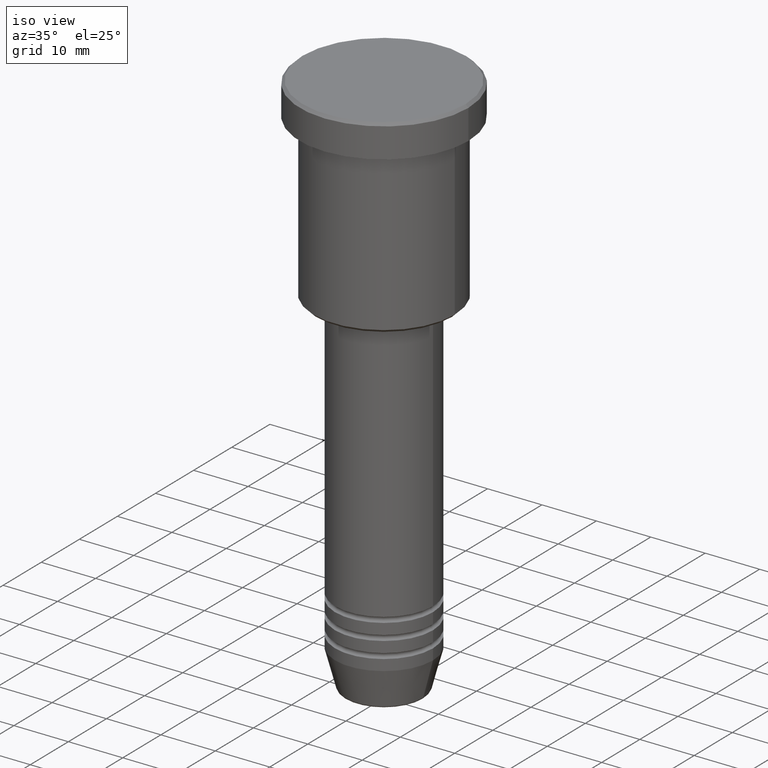
[diagram: clean part render]
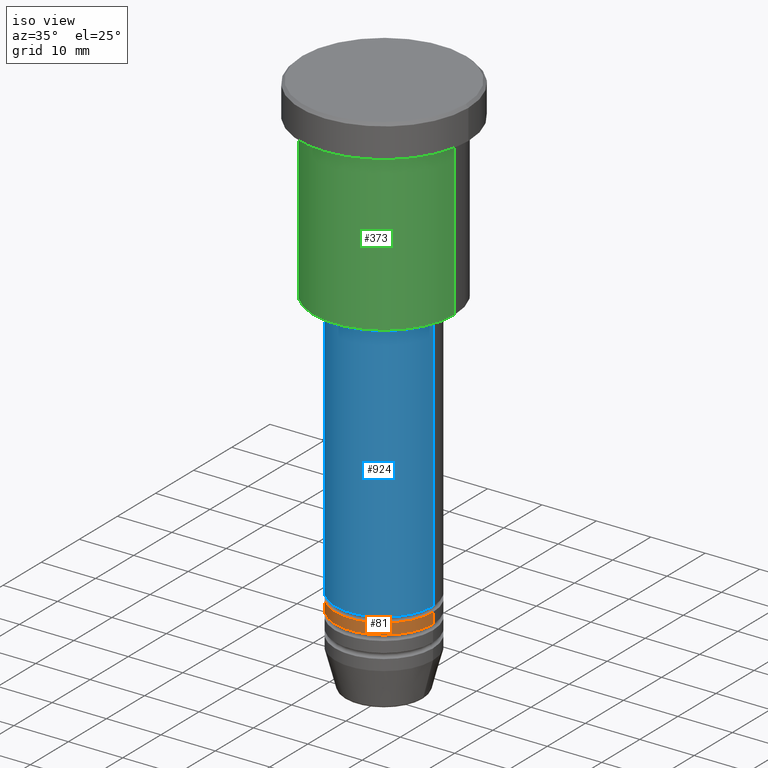
[diagram: same view with three faces highlighted in distinct colors, each labeled with its STEP entity id]
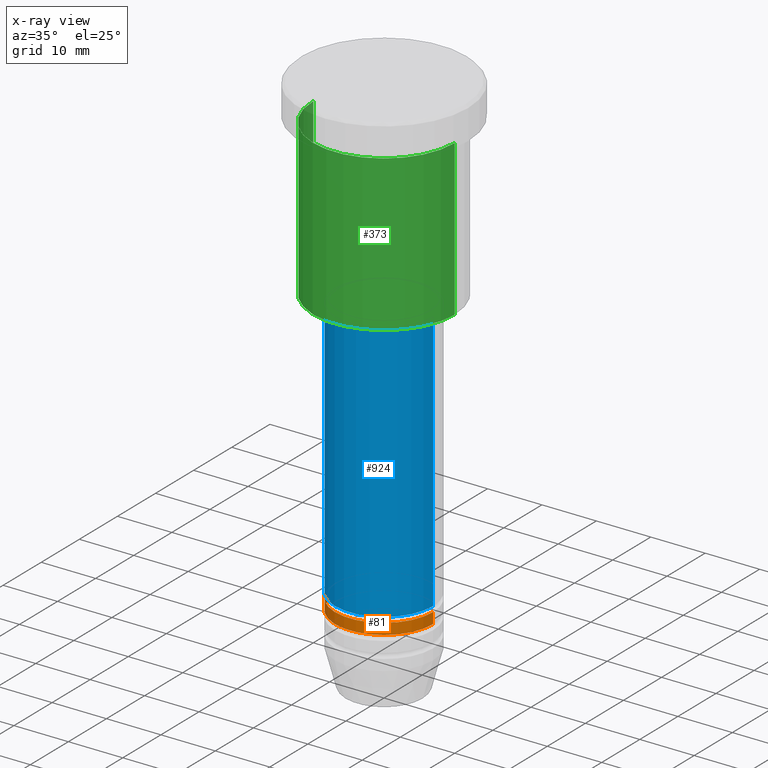
[diagram: x-ray of the same camera — body ghosted, the three highlighted faces saturated]
A machine part, iso view with three faces highlighted in distinct colors.
The next image is the same camera in x-ray (body ghosted, the three faces saturated) — at least one of them is partly hidden behind the body in this view.
Their STEP definitions:

[orange] entity #81 — the highlighted cylindrical surface (partial cylindrical patch) has radius 9 mm, axis along (-0, -0, 1).
#39 = CARTESIAN_POINT ( 'NONE',  ( -9.000000000000000000, 1.102182119232617714E-15, -87.99999999999998579 ) ) ;
#81 = ADVANCED_FACE ( 'NONE', ( #522 ), #903, .T. ) ;
#82 = EDGE_CURVE ( 'NONE', #301, #660, #1104, .T. ) ;
#96 = DIRECTION ( 'NONE',  ( 1.000000000000000000, 0.000000000000000000, 0.000000000000000000 ) ) ;
#115 = DIRECTION ( 'NONE',  ( 1.000000000000000000, 0.000000000000000000, 0.000000000000000000 ) ) ;
#172 = DIRECTION ( 'NONE',  ( 1.000000000000000000, 0.000000000000000000, 0.000000000000000000 ) ) ;
#240 = EDGE_CURVE ( 'NONE', #660, #585, #1017, .T. ) ;
#297 = DIRECTION ( 'NONE',  ( -0.000000000000000000, -0.000000000000000000, 1.000000000000000000 ) ) ;
#301 = VERTEX_POINT ( 'NONE', #39 ) ;
#334 = CARTESIAN_POINT ( 'NONE',  ( 9.000000000000000000, 0.000000000000000000, 0.000000000000000000 ) ) ;
#366 = AXIS2_PLACEMENT_3D ( 'NONE', #1014, #554, #96 ) ;
#392 = VERTEX_POINT ( 'NONE', #977 ) ;
#442 = CARTESIAN_POINT ( 'NONE',  ( 0.000000000000000000, 0.000000000000000000, 0.000000000000000000 ) ) ;
#455 = AXIS2_PLACEMENT_3D ( 'NONE', #497, #884, #115 ) ;
#475 = CARTESIAN_POINT ( 'NONE',  ( -9.000000000000000000, 1.102182119232617714E-15, 0.000000000000000000 ) ) ;
#494 = CIRCLE ( 'NONE', #366, 9.000000000000000000 ) ;
#497 = CARTESIAN_POINT ( 'NONE',  ( 0.000000000000000000, 0.000000000000000000, -85.99999999999998579 ) ) ;
#498 = EDGE_CURVE ( 'NONE', #392, #585, #1066, .T. ) ;
#521 = ORIENTED_EDGE ( 'NONE', *, *, #1092, .T. ) ;
#522 = FACE_OUTER_BOUND ( 'NONE', #662, .T. ) ;
#554 = DIRECTION ( 'NONE',  ( -0.000000000000000000, -0.000000000000000000, 1.000000000000000000 ) ) ;
#585 = VERTEX_POINT ( 'NONE', #1111 ) ;
#660 = VERTEX_POINT ( 'NONE', #1032 ) ;
#662 = EDGE_LOOP ( 'NONE', ( #1175, #521, #859, #802 ) ) ;
#705 = DIRECTION ( 'NONE',  ( -0.000000000000000000, -0.000000000000000000, 1.000000000000000000 ) ) ;
#802 = ORIENTED_EDGE ( 'NONE', *, *, #240, .F. ) ;
#838 = DIRECTION ( 'NONE',  ( -0.000000000000000000, -0.000000000000000000, 1.000000000000000000 ) ) ;
#859 = ORIENTED_EDGE ( 'NONE', *, *, #498, .T. ) ;
#884 = DIRECTION ( 'NONE',  ( -0.000000000000000000, -0.000000000000000000, 1.000000000000000000 ) ) ;
#903 = CYLINDRICAL_SURFACE ( 'NONE', #1182, 9.000000000000000000 ) ;
#977 = CARTESIAN_POINT ( 'NONE',  ( 9.000000000000000000, 0.000000000000000000, -87.99999999999998579 ) ) ;
#1001 = VECTOR ( 'NONE', #705, 1000.000000000000000 ) ;
#1014 = CARTESIAN_POINT ( 'NONE',  ( 0.000000000000000000, 0.000000000000000000, -87.99999999999998579 ) ) ;
#1017 = CIRCLE ( 'NONE', #455, 9.000000000000000000 ) ;
#1032 = CARTESIAN_POINT ( 'NONE',  ( -9.000000000000000000, 1.102182119232617714E-15, -85.99999999999998579 ) ) ;
#1035 = VECTOR ( 'NONE', #297, 1000.000000000000000 ) ;
#1066 = LINE ( 'NONE', #334, #1001 ) ;
#1092 = EDGE_CURVE ( 'NONE', #301, #392, #494, .T. ) ;
#1104 = LINE ( 'NONE', #475, #1035 ) ;
#1111 = CARTESIAN_POINT ( 'NONE',  ( 9.000000000000000000, 0.000000000000000000, -85.99999999999998579 ) ) ;
#1175 = ORIENTED_EDGE ( 'NONE', *, *, #82, .F. ) ;
#1182 = AXIS2_PLACEMENT_3D ( 'NONE', #442, #838, #172 ) ;

[blue] entity #924 — the highlighted cylindrical surface (partial cylindrical patch) has radius 9 mm, axis along (-0, -0, 1).
#53 = DIRECTION ( 'NONE',  ( 1.000000000000000000, 0.000000000000000000, 0.000000000000000000 ) ) ;
#73 = VECTOR ( 'NONE', #201, 1000.000000000000000 ) ;
#102 = ORIENTED_EDGE ( 'NONE', *, *, #419, .F. ) ;
#201 = DIRECTION ( 'NONE',  ( -0.000000000000000000, -0.000000000000000000, 1.000000000000000000 ) ) ;
#210 = DIRECTION ( 'NONE',  ( -0.000000000000000000, -0.000000000000000000, 1.000000000000000000 ) ) ;
#218 = CARTESIAN_POINT ( 'NONE',  ( -9.000000000000000000, 1.102182119232617714E-15, -36.99999999999997868 ) ) ;
#236 = VERTEX_POINT ( 'NONE', #218 ) ;
#237 = CARTESIAN_POINT ( 'NONE',  ( 9.000000000000000000, 0.000000000000000000, -84.99999999999997158 ) ) ;
#327 = CIRCLE ( 'NONE', #872, 9.000000000000000000 ) ;
#347 = VERTEX_POINT ( 'NONE', #813 ) ;
#419 = EDGE_CURVE ( 'NONE', #236, #1125, #731, .T. ) ;
#423 = CARTESIAN_POINT ( 'NONE',  ( 0.000000000000000000, 0.000000000000000000, -36.99999999999997868 ) ) ;
#426 = ORIENTED_EDGE ( 'NONE', *, *, #795, .T. ) ;
#469 = ORIENTED_EDGE ( 'NONE', *, *, #1147, .F. ) ;
#470 = LINE ( 'NONE', #589, #73 ) ;
#474 = AXIS2_PLACEMENT_3D ( 'NONE', #804, #887, #53 ) ;
#488 = AXIS2_PLACEMENT_3D ( 'NONE', #423, #998, #1084 ) ;
#589 = CARTESIAN_POINT ( 'NONE',  ( -9.000000000000000000, 1.102182119232617714E-15, 0.000000000000000000 ) ) ;
#607 = CYLINDRICAL_SURFACE ( 'NONE', #474, 9.000000000000000000 ) ;
#666 = ORIENTED_EDGE ( 'NONE', *, *, #1109, .T. ) ;
#675 = CARTESIAN_POINT ( 'NONE',  ( 9.000000000000000000, 0.000000000000000000, -36.99999999999997868 ) ) ;
#731 = CIRCLE ( 'NONE', #488, 9.000000000000000000 ) ;
#738 = EDGE_LOOP ( 'NONE', ( #469, #426, #666, #102 ) ) ;
#759 = CARTESIAN_POINT ( 'NONE',  ( 9.000000000000000000, 0.000000000000000000, 0.000000000000000000 ) ) ;
#771 = DIRECTION ( 'NONE',  ( -0.000000000000000000, -0.000000000000000000, 1.000000000000000000 ) ) ;
#795 = EDGE_CURVE ( 'NONE', #347, #945, #327, .T. ) ;
#804 = CARTESIAN_POINT ( 'NONE',  ( 0.000000000000000000, 0.000000000000000000, 0.000000000000000000 ) ) ;
#813 = CARTESIAN_POINT ( 'NONE',  ( -9.000000000000000000, 1.102182119232617714E-15, -84.99999999999997158 ) ) ;
#857 = CARTESIAN_POINT ( 'NONE',  ( 0.000000000000000000, 0.000000000000000000, -84.99999999999997158 ) ) ;
#872 = AXIS2_PLACEMENT_3D ( 'NONE', #857, #210, #961 ) ;
#887 = DIRECTION ( 'NONE',  ( -0.000000000000000000, -0.000000000000000000, 1.000000000000000000 ) ) ;
#899 = FACE_OUTER_BOUND ( 'NONE', #738, .T. ) ;
#924 = ADVANCED_FACE ( 'NONE', ( #899 ), #607, .T. ) ;
#936 = VECTOR ( 'NONE', #771, 1000.000000000000000 ) ;
#945 = VERTEX_POINT ( 'NONE', #237 ) ;
#961 = DIRECTION ( 'NONE',  ( 1.000000000000000000, 0.000000000000000000, 0.000000000000000000 ) ) ;
#998 = DIRECTION ( 'NONE',  ( -0.000000000000000000, -0.000000000000000000, 1.000000000000000000 ) ) ;
#1046 = LINE ( 'NONE', #759, #936 ) ;
#1084 = DIRECTION ( 'NONE',  ( 1.000000000000000000, 0.000000000000000000, 0.000000000000000000 ) ) ;
#1109 = EDGE_CURVE ( 'NONE', #945, #1125, #1046, .T. ) ;
#1125 = VERTEX_POINT ( 'NONE', #675 ) ;
#1147 = EDGE_CURVE ( 'NONE', #347, #236, #470, .T. ) ;

[green] entity #373 — the highlighted cylindrical surface (partial cylindrical patch) has radius 13 mm, axis along (-0, -0, 1).
#1 = AXIS2_PLACEMENT_3D ( 'NONE', #29, #34, #878 ) ;
#9 = DIRECTION ( 'NONE',  ( 1.000000000000000000, 0.000000000000000000, 0.000000000000000000 ) ) ;
#25 = ORIENTED_EDGE ( 'NONE', *, *, #216, .T. ) ;
#29 = CARTESIAN_POINT ( 'NONE',  ( 0.000000000000000000, 0.000000000000000000, -35.50000000000000711 ) ) ;
#34 = DIRECTION ( 'NONE',  ( -0.000000000000000000, -0.000000000000000000, 1.000000000000000000 ) ) ;
#63 = ORIENTED_EDGE ( 'NONE', *, *, #328, .T. ) ;
#67 = DIRECTION ( 'NONE',  ( 1.000000000000000000, 0.000000000000000000, 0.000000000000000000 ) ) ;
#108 = VECTOR ( 'NONE', #394, 1000.000000000000000 ) ;
#127 = EDGE_CURVE ( 'NONE', #923, #242, #965, .T. ) ;
#128 = CARTESIAN_POINT ( 'NONE',  ( 13.00000000000000000, 0.000000000000000000, 0.000000000000000000 ) ) ;
#204 = ORIENTED_EDGE ( 'NONE', *, *, #127, .F. ) ;
#209 = CARTESIAN_POINT ( 'NONE',  ( 13.00000000000000000, 0.000000000000000000, -35.50000000000000711 ) ) ;
#216 = EDGE_CURVE ( 'NONE', #706, #1145, #417, .T. ) ;
#242 = VERTEX_POINT ( 'NONE', #853 ) ;
#261 = AXIS2_PLACEMENT_3D ( 'NONE', #345, #719, #67 ) ;
#284 = AXIS2_PLACEMENT_3D ( 'NONE', #552, #834, #9 ) ;
#328 = EDGE_CURVE ( 'NONE', #1145, #242, #860, .T. ) ;
#345 = CARTESIAN_POINT ( 'NONE',  ( 0.000000000000000000, 0.000000000000000000, 0.000000000000000000 ) ) ;
#373 = ADVANCED_FACE ( 'NONE', ( #1173 ), #888, .T. ) ;
#394 = DIRECTION ( 'NONE',  ( -0.000000000000000000, -0.000000000000000000, 1.000000000000000000 ) ) ;
#417 = CIRCLE ( 'NONE', #1, 13.00000000000000000 ) ;
#447 = CARTESIAN_POINT ( 'NONE',  ( -13.00000000000000000, 1.592040838891559095E-15, 0.000000000000000000 ) ) ;
#476 = CARTESIAN_POINT ( 'NONE',  ( -13.00000000000000000, 1.592040838891559095E-15, -35.50000000000000711 ) ) ;
#552 = CARTESIAN_POINT ( 'NONE',  ( 0.000000000000000000, 0.000000000000000000, -6.999999999999995559 ) ) ;
#599 = VECTOR ( 'NONE', #726, 1000.000000000000000 ) ;
#702 = CARTESIAN_POINT ( 'NONE',  ( -13.00000000000000000, 1.592040838891559095E-15, -6.999999999999995559 ) ) ;
#706 = VERTEX_POINT ( 'NONE', #476 ) ;
#719 = DIRECTION ( 'NONE',  ( -0.000000000000000000, -0.000000000000000000, 1.000000000000000000 ) ) ;
#726 = DIRECTION ( 'NONE',  ( -0.000000000000000000, -0.000000000000000000, 1.000000000000000000 ) ) ;
#834 = DIRECTION ( 'NONE',  ( -0.000000000000000000, -0.000000000000000000, 1.000000000000000000 ) ) ;
#853 = CARTESIAN_POINT ( 'NONE',  ( 13.00000000000000000, 0.000000000000000000, -6.999999999999995559 ) ) ;
#860 = LINE ( 'NONE', #128, #108 ) ;
#878 = DIRECTION ( 'NONE',  ( -1.000000000000000000, 0.000000000000000000, 0.000000000000000000 ) ) ;
#888 = CYLINDRICAL_SURFACE ( 'NONE', #261, 13.00000000000000000 ) ;
#923 = VERTEX_POINT ( 'NONE', #702 ) ;
#965 = CIRCLE ( 'NONE', #284, 13.00000000000000000 ) ;
#974 = EDGE_CURVE ( 'NONE', #706, #923, #1176, .T. ) ;
#1024 = ORIENTED_EDGE ( 'NONE', *, *, #974, .F. ) ;
#1051 = EDGE_LOOP ( 'NONE', ( #1024, #25, #63, #204 ) ) ;
#1145 = VERTEX_POINT ( 'NONE', #209 ) ;
#1173 = FACE_OUTER_BOUND ( 'NONE', #1051, .T. ) ;
#1176 = LINE ( 'NONE', #447, #599 ) ;